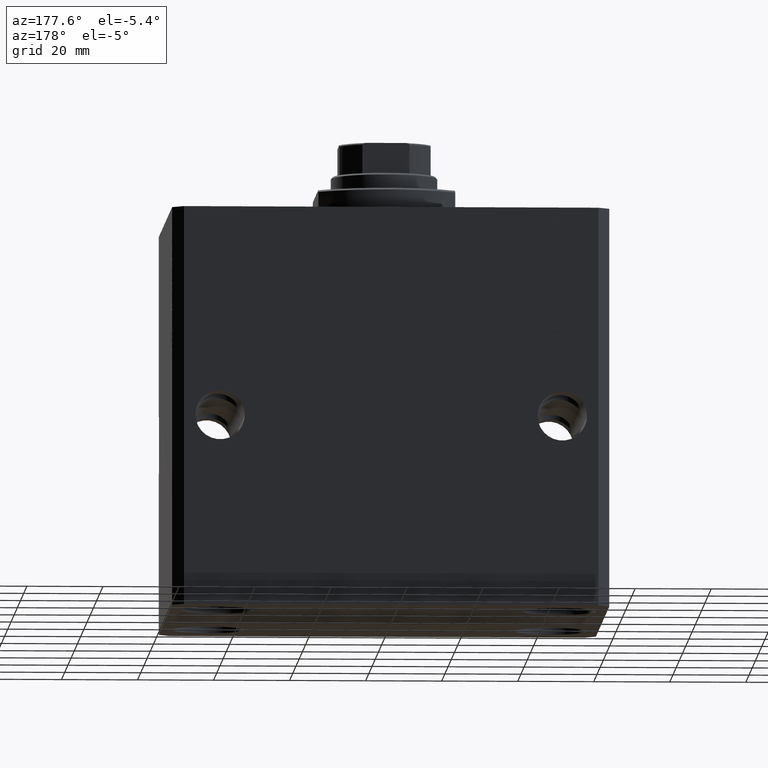
[diagram: clean part render]
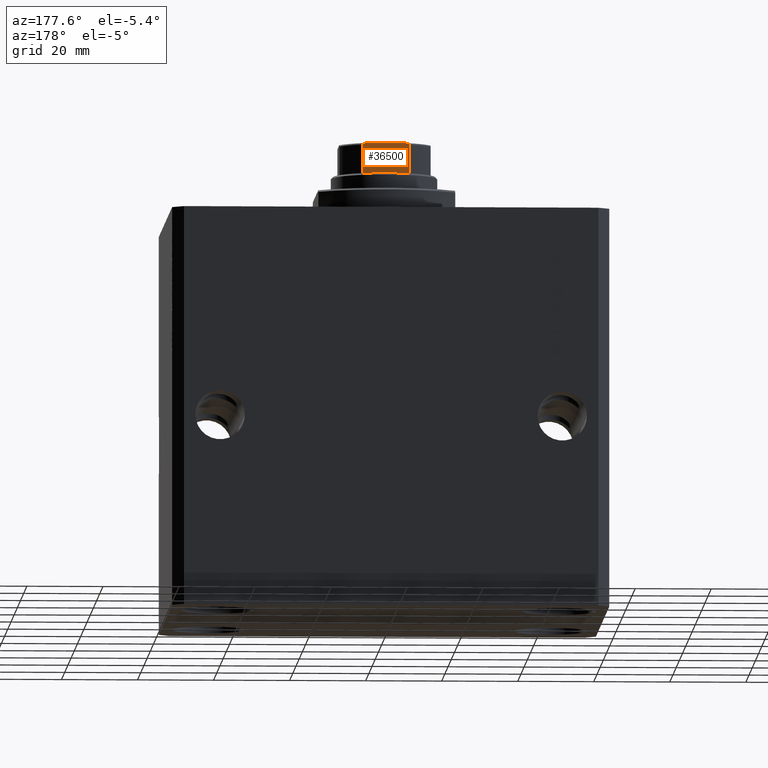
[diagram: same view with one face highlighted and labeled with its STEP entity id]
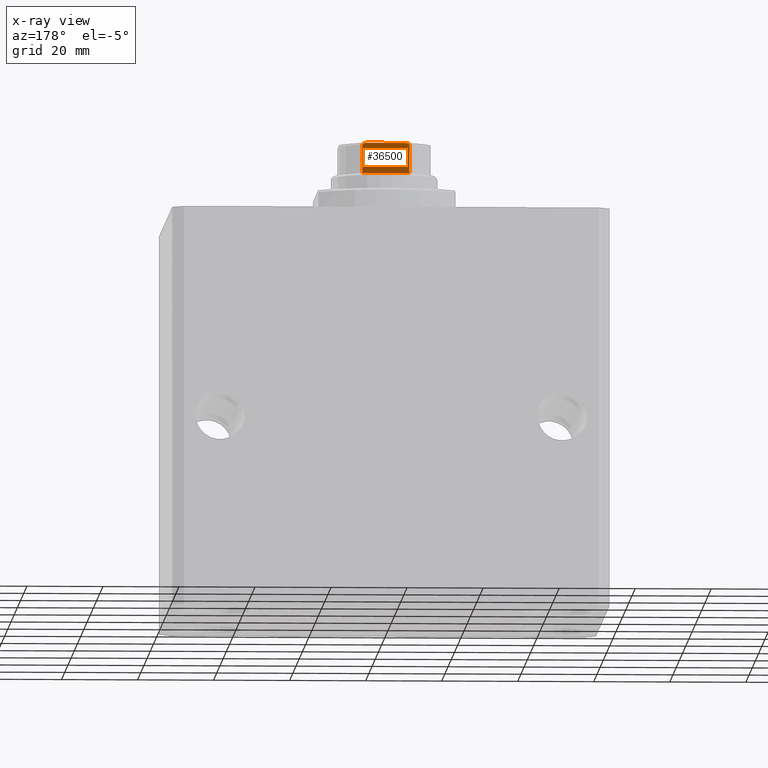
[diagram: x-ray of the same camera — body ghosted, the highlighted face saturated]
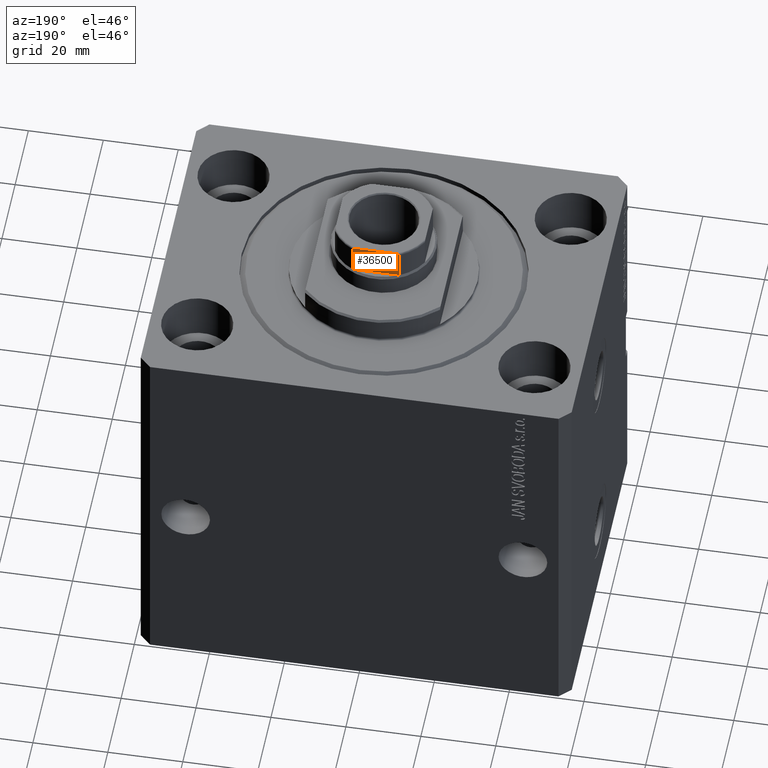
[diagram: same view with one face highlighted and labeled with its STEP entity id]
A machine part, auxiliary view. The second image highlights one B-rep face of the part: STEP entity #36500.
The next image is the same camera in x-ray: the body ghosted, the highlighted face saturated — about 0% of this face is hidden behind the body in this view.
A second angle (auxiliary view) of the same face is appended — the face is thin or edge-on in the first view.
In plain terms, the highlighted planar face has unit normal (0, -1, 0).
Its self-contained STEP definition (entity closure, byte-faithful):
#167 = CARTESIAN_POINT ( 'NONE',  ( 6.091027642353962435, 12.00000000000000355, 106.8080088155617347 ) ) ;
#562 = DIRECTION ( 'NONE',  ( -0.000000000000000000, -0.000000000000000000, 1.000000000000000000 ) ) ;
#752 = ORIENTED_EDGE ( 'NONE', *, *, #854, .F. ) ;
#779 = B_SPLINE_CURVE_WITH_KNOTS ( 'NONE', 3,
 ( #30591, #24314, #2491, #6439, #23394, #17359, #6209, #45667, #20840, #5977 ),
 .UNSPECIFIED., .F., .F.,
 ( 4, 2, 2, 2, 4 ),
 ( 0.000000000000000000, 0.0001740189231935435705, 0.0003480378463870871411, 0.0006960756927741721138, 0.001392151385548330567 ),
 .UNSPECIFIED. ) ;
#844 = CARTESIAN_POINT ( 'NONE',  ( 5.459934723612541951, 12.00000000000000000, 107.0794964115812036 ) ) ;
#854 = EDGE_CURVE ( 'NONE', #8687, #40152, #4193, .T. ) ;
#1485 = VECTOR ( 'NONE', #27908, 1000.000000000000000 ) ;
#2491 = CARTESIAN_POINT ( 'NONE',  ( -6.161088279078732910, 12.00000000000000000, 106.7146234191510104 ) ) ;
#3354 = CARTESIAN_POINT ( 'NONE',  ( -6.184658438426490434, 12.00000000000000000, 106.5999999999999943 ) ) ;
#4193 = LINE ( 'NONE', #43189, #44657 ) ;
#5977 = CARTESIAN_POINT ( 'NONE',  ( -5.000000000000001776, 11.99999999999999822, 107.0999999999999943 ) ) ;
#6093 = EDGE_CURVE ( 'NONE', #14508, #40152, #779, .T. ) ;
#6209 = CARTESIAN_POINT ( 'NONE',  ( -5.792513940493508429, 11.99999999999999822, 106.9846382036009373 ) ) ;
#6439 = CARTESIAN_POINT ( 'NONE',  ( -6.091003570118825650, 11.99999999999999822, 106.8080862465981227 ) ) ;
#7592 = CARTESIAN_POINT ( 'NONE',  ( 6.045866546018598520, 12.00000000000000178, 106.8461068616299485 ) ) ;
#7810 = CARTESIAN_POINT ( 'NONE',  ( 5.903192932991098374, 12.00000000000000000, 106.9415152347680333 ) ) ;
#8687 = VERTEX_POINT ( 'NONE', #21995 ) ;
#8762 = ORIENTED_EDGE ( 'NONE', *, *, #39655, .T. ) ;
#8846 = ORIENTED_EDGE ( 'NONE', *, *, #36236, .F. ) ;
#11130 = CARTESIAN_POINT ( 'NONE',  ( -6.184658438426488658, 12.00000000000000000, 99.10000000000006537 ) ) ;
#11477 = CARTESIAN_POINT ( 'NONE',  ( 6.184658438426490434, 11.99999999999999822, -0.001000000000001000089 ) ) ;
#13297 = EDGE_LOOP ( 'NONE', ( #752, #32211, #8846, #40392, #8762, #42518 ) ) ;
#13752 = LINE ( 'NONE', #38589, #1485 ) ;
#14067 = AXIS2_PLACEMENT_3D ( 'NONE', #29287, #43444, #32096 ) ;
#14508 = VERTEX_POINT ( 'NONE', #3354 ) ;
#14671 = FACE_OUTER_BOUND ( 'NONE', #13297, .T. ) ;
#14784 = CARTESIAN_POINT ( 'NONE',  ( 5.793822051191360956, 11.99999999999999822, 106.9841735219943359 ) ) ;
#16612 = EDGE_CURVE ( 'NONE', #8687, #22255, #29482, .T. ) ;
#16941 = EDGE_CURVE ( 'NONE', #38482, #30135, #35788, .T. ) ;
#17359 = CARTESIAN_POINT ( 'NONE',  ( -5.900889097622411761, 12.00000000000000178, 106.9429613869932894 ) ) ;
#17667 = CARTESIAN_POINT ( 'NONE',  ( 6.184658438426492211, 12.00000000000000178, 99.10000000000006537 ) ) ;
#20840 = CARTESIAN_POINT ( 'NONE',  ( -5.230795946637842420, 11.99999999999999645, 107.0999999999999943 ) ) ;
#21968 = CARTESIAN_POINT ( 'NONE',  ( 6.184658438426490434, 11.99999999999999822, 106.5999999999999943 ) ) ;
#21995 = CARTESIAN_POINT ( 'NONE',  ( 5.000000000000002665, 12.00000000000000000, 107.0999999999999943 ) ) ;
#22086 = DIRECTION ( 'NONE',  ( -1.000000000000000000, -7.228014483236695816E-17, -0.000000000000000000 ) ) ;
#22255 = VERTEX_POINT ( 'NONE', #33257 ) ;
#23394 = CARTESIAN_POINT ( 'NONE',  ( -6.046414714222231979, 11.99999999999999822, 106.8457872300293019 ) ) ;
#24314 = CARTESIAN_POINT ( 'NONE',  ( -6.184658438426491323, 12.00000000000000000, 106.6589344020393924 ) ) ;
#24774 = CARTESIAN_POINT ( 'NONE',  ( 5.000000000000002665, 12.00000000000000000, 107.0999999999999943 ) ) ;
#24792 = VECTOR ( 'NONE', #22086, 1000.000000000000000 ) ;
#25451 = CARTESIAN_POINT ( 'NONE',  ( 6.160856115322540738, 12.00000000000000355, 106.7149782197479055 ) ) ;
#25766 = DIRECTION ( 'NONE',  ( -1.000000000000000000, -7.228014483236695816E-17, -0.000000000000000000 ) ) ;
#27049 = CARTESIAN_POINT ( 'NONE',  ( -5.000000000000001776, 11.99999999999999822, 107.0999999999999943 ) ) ;
#27908 = DIRECTION ( 'NONE',  ( -0.000000000000000000, -0.000000000000000000, 1.000000000000000000 ) ) ;
#28155 = VECTOR ( 'NONE', #562, 1000.000000000000000 ) ;
#28604 = CARTESIAN_POINT ( 'NONE',  ( -11.99999999999999822, 11.99999999999999822, 99.09999999999999432 ) ) ;
#29287 = CARTESIAN_POINT ( 'NONE',  ( -11.99999999999999822, 11.99999999999999822, 107.0999999999999943 ) ) ;
#29482 = B_SPLINE_CURVE_WITH_KNOTS ( 'NONE', 3,
 ( #24774, #35445, #844, #14784, #7810, #7592, #167, #25451, #39618, #21968 ),
 .UNSPECIFIED., .F., .F.,
 ( 4, 2, 2, 2, 4 ),
 ( 1.734723475976807094E-18, 0.0006877128613558521411, 0.001031569292033771706, 0.001203497507372732573, 0.001375425722711693440 ),
 .UNSPECIFIED. ) ;
#30135 = VERTEX_POINT ( 'NONE', #11130 ) ;
#30591 = CARTESIAN_POINT ( 'NONE',  ( -6.184658438426490434, 12.00000000000000000, 106.5999999999999943 ) ) ;
#32096 = DIRECTION ( 'NONE',  ( 1.000000000000000000, 7.228014483236695816E-17, 0.000000000000000000 ) ) ;
#32211 = ORIENTED_EDGE ( 'NONE', *, *, #16612, .T. ) ;
#33045 = LINE ( 'NONE', #11477, #28155 ) ;
#33257 = CARTESIAN_POINT ( 'NONE',  ( 6.184658438426490434, 11.99999999999999822, 106.5999999999999943 ) ) ;
#35445 = CARTESIAN_POINT ( 'NONE',  ( 5.230809753656818550, 11.99999999999999289, 107.0999999999999801 ) ) ;
#35788 = LINE ( 'NONE', #28604, #24792 ) ;
#36236 = EDGE_CURVE ( 'NONE', #38482, #22255, #33045, .T. ) ;
#36500 = ADVANCED_FACE ( 'NONE', ( #14671 ), #39739, .F. ) ;
#38482 = VERTEX_POINT ( 'NONE', #17667 ) ;
#38589 = CARTESIAN_POINT ( 'NONE',  ( -6.184658438426490434, 12.00000000000000000, -0.001000000000001000089 ) ) ;
#39618 = CARTESIAN_POINT ( 'NONE',  ( 6.184658438426495763, 12.00000000000000355, 106.6589821493407584 ) ) ;
#39655 = EDGE_CURVE ( 'NONE', #30135, #14508, #13752, .T. ) ;
#39739 = PLANE ( 'NONE',  #14067 ) ;
#40152 = VERTEX_POINT ( 'NONE', #27049 ) ;
#40392 = ORIENTED_EDGE ( 'NONE', *, *, #16941, .T. ) ;
#42518 = ORIENTED_EDGE ( 'NONE', *, *, #6093, .T. ) ;
#43189 = CARTESIAN_POINT ( 'NONE',  ( -11.99999999999999822, 11.99999999999999822, 107.0999999999999943 ) ) ;
#43444 = DIRECTION ( 'NONE',  ( 7.228014483236695816E-17, -1.000000000000000000, 0.000000000000000000 ) ) ;
#44657 = VECTOR ( 'NONE', #25766, 1000.000000000000000 ) ;
#45667 = CARTESIAN_POINT ( 'NONE',  ( -5.458892612163326774, 11.99999999999999822, 107.0796099716497736 ) ) ;